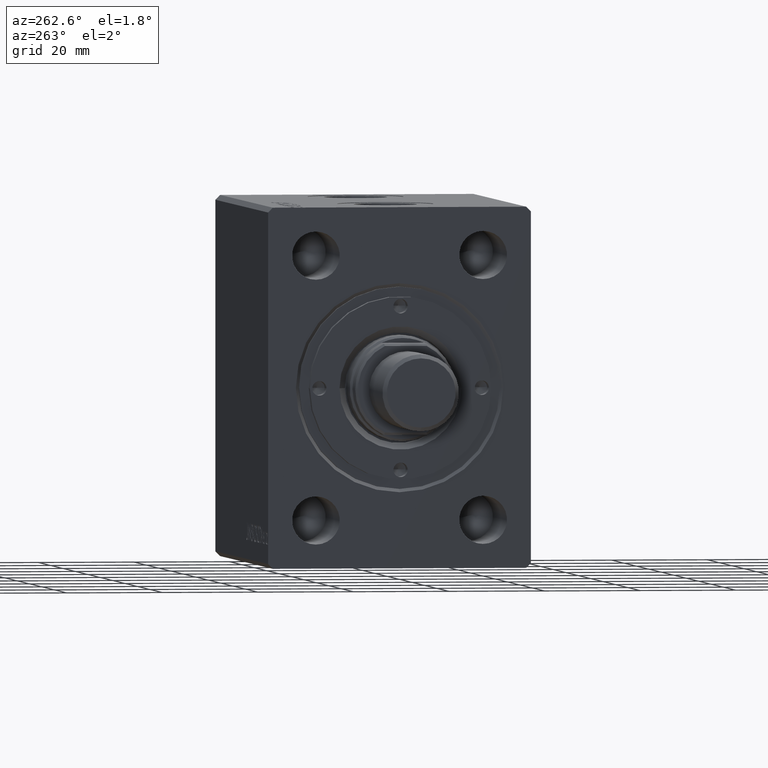
[diagram: clean part render]
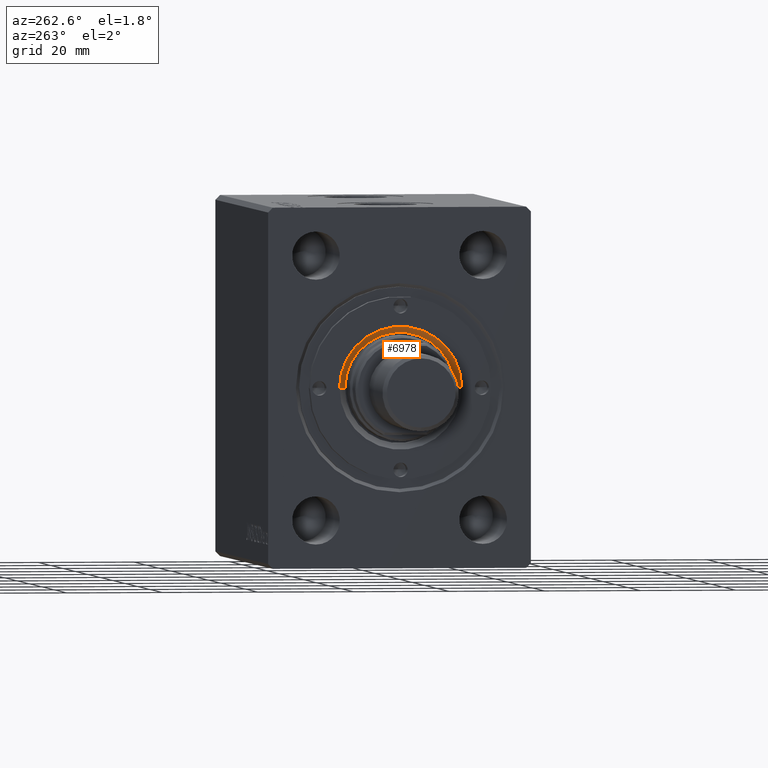
[diagram: same view with one face highlighted and labeled with its STEP entity id]
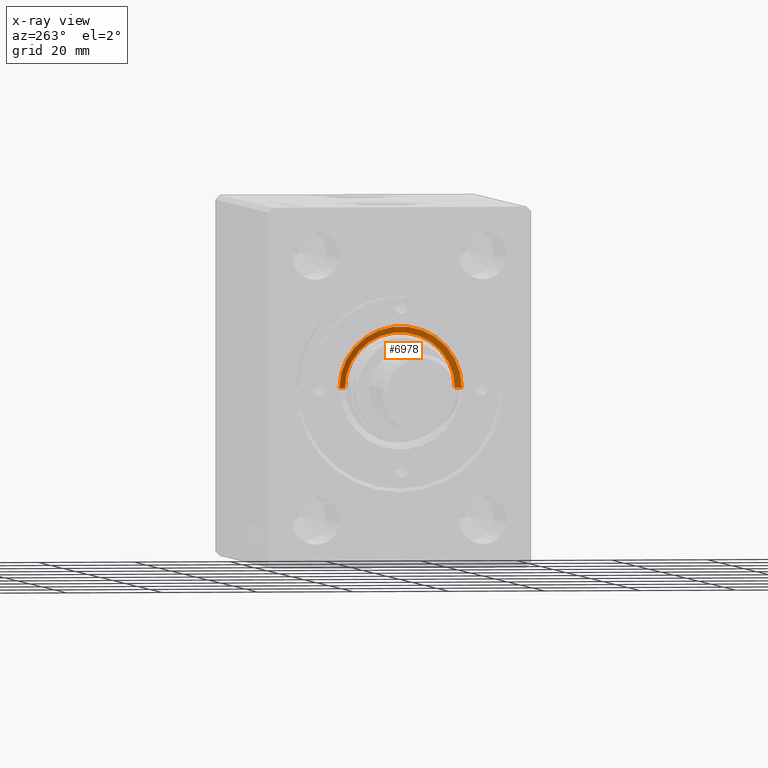
[diagram: x-ray of the same camera — body ghosted, the highlighted face saturated]
A machine part, auxiliary view. The second image highlights one B-rep face of the part: STEP entity #6978.
The next image is the same camera in x-ray: the body ghosted, the highlighted face saturated — about 3% of this face is hidden behind the body in this view.
In plain terms, the highlighted conical surface has half-angle 45 deg.
Its self-contained STEP definition (entity closure, byte-faithful):
#3472 = CIRCLE ( 'NONE', #10634, 12.79999999999997407 ) ;
#6547 = DIRECTION ( 'NONE',  ( 0.000000000000000000, 0.000000000000000000, 1.000000000000000000 ) ) ;
#6912 = CARTESIAN_POINT ( 'NONE',  ( -10.99999999999995559, 1.347111479062083277E-15, 8.199999999999999289 ) ) ;
#6952 = CARTESIAN_POINT ( 'NONE',  ( -11.50000000000000000, 1.408343819019456176E-15, 8.700000000000038369 ) ) ;
#6978 = ADVANCED_FACE ( 'NONE', ( #12349 ), #41882, .F. ) ;
#7579 = ORIENTED_EDGE ( 'NONE', *, *, #33476, .F. ) ;
#9128 = EDGE_LOOP ( 'NONE', ( #12490, #36831, #7579, #29841 ) ) ;
#10634 = AXIS2_PLACEMENT_3D ( 'NONE', #38616, #11657, #38391 ) ;
#11657 = DIRECTION ( 'NONE',  ( -0.000000000000000000, -0.000000000000000000, -1.000000000000000000 ) ) ;
#12349 = FACE_OUTER_BOUND ( 'NONE', #9128, .T. ) ;
#12490 = ORIENTED_EDGE ( 'NONE', *, *, #44392, .F. ) ;
#13512 = VERTEX_POINT ( 'NONE', #32092 ) ;
#13745 = CARTESIAN_POINT ( 'NONE',  ( 10.99999999999995559, 0.000000000000000000, 8.199999999999999289 ) ) ;
#13870 = DIRECTION ( 'NONE',  ( -0.7071067811865512365, 8.659560562354979697E-17, 0.7071067811865439090 ) ) ;
#14420 = DIRECTION ( 'NONE',  ( 0.7071067811865512365, 0.000000000000000000, 0.7071067811865439090 ) ) ;
#15105 = CARTESIAN_POINT ( 'NONE',  ( 12.79999999999997407, 0.000000000000000000, 9.999999999999998224 ) ) ;
#18597 = VECTOR ( 'NONE', #13870, 1000.000000000000000 ) ;
#19277 = CARTESIAN_POINT ( 'NONE',  ( 0.000000000000000000, 0.000000000000000000, 8.199999999999999289 ) ) ;
#19718 = DIRECTION ( 'NONE',  ( 1.000000000000000000, 0.000000000000000000, 0.000000000000000000 ) ) ;
#22069 = VERTEX_POINT ( 'NONE', #15105 ) ;
#22294 = CIRCLE ( 'NONE', #38818, 11.50000000000000000 ) ;
#23244 = VERTEX_POINT ( 'NONE', #6952 ) ;
#25671 = EDGE_CURVE ( 'NONE', #25764, #22069, #41830, .T. ) ;
#25764 = VERTEX_POINT ( 'NONE', #27665 ) ;
#27208 = CARTESIAN_POINT ( 'NONE',  ( 0.000000000000000000, 0.000000000000000000, 8.700000000000038369 ) ) ;
#27531 = AXIS2_PLACEMENT_3D ( 'NONE', #19277, #29851, #19718 ) ;
#27665 = CARTESIAN_POINT ( 'NONE',  ( 11.50000000000000000, 0.000000000000000000, 8.700000000000038369 ) ) ;
#29841 = ORIENTED_EDGE ( 'NONE', *, *, #25671, .F. ) ;
#29851 = DIRECTION ( 'NONE',  ( 0.000000000000000000, 0.000000000000000000, 1.000000000000000000 ) ) ;
#32092 = CARTESIAN_POINT ( 'NONE',  ( -12.79999999999997407, 1.567547902908609029E-15, 9.999999999999998224 ) ) ;
#33476 = EDGE_CURVE ( 'NONE', #22069, #13512, #3472, .T. ) ;
#33614 = VECTOR ( 'NONE', #14420, 1000.000000000000000 ) ;
#34092 = LINE ( 'NONE', #6912, #18597 ) ;
#34161 = DIRECTION ( 'NONE',  ( 1.000000000000000000, 0.000000000000000000, 0.000000000000000000 ) ) ;
#36831 = ORIENTED_EDGE ( 'NONE', *, *, #40788, .T. ) ;
#38391 = DIRECTION ( 'NONE',  ( 1.000000000000000000, 0.000000000000000000, 0.000000000000000000 ) ) ;
#38616 = CARTESIAN_POINT ( 'NONE',  ( 0.000000000000000000, 0.000000000000000000, 9.999999999999998224 ) ) ;
#38818 = AXIS2_PLACEMENT_3D ( 'NONE', #27208, #6547, #34161 ) ;
#40788 = EDGE_CURVE ( 'NONE', #23244, #13512, #34092, .T. ) ;
#41830 = LINE ( 'NONE', #13745, #33614 ) ;
#41882 = CONICAL_SURFACE ( 'NONE', #27531, 10.99999999999995559, 0.7853981633974533860 ) ;
#44392 = EDGE_CURVE ( 'NONE', #23244, #25764, #22294, .T. ) ;